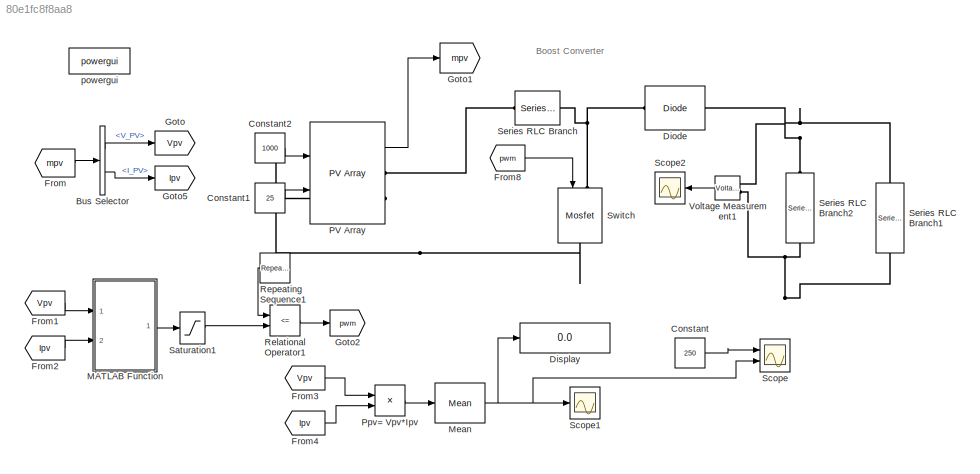
MODEL slx_80e1fc8f8aa8
KIND model
CONFIG AbsTol = auto
CONFIG FixedStep = auto
CONFIG MaxStep = 1e-5
CONFIG MinStep = auto
CONFIG RelTol = 1e-4
CONFIG SampleTimeConstraint = Unconstrained
CONFIG Solver = ode23s
CONFIG SolverMode = Auto
CONFIG SolverName = ode23s
CONFIG StartTime = 0.0
CONFIG StopTime = 1
BLOCK [BusSelector] Bus Selector
  OutputSignals = V_PV,I_PV
  Ports = [1, 2]
BLOCK [Constant] Constant
  Value = 250
BLOCK [Constant] Constant1
  Value = 25
BLOCK [Constant] Constant2
  Value = 1000
BLOCK [Reference] Diode  REF=powerlib/Power
Electronics/Diode
  Cs = 250e-9
  IC = 0
  Lon = 0
  Measurements = off
  Ports = [0, 0, 0, 0, 0, 1, 1]
  Ron = 0.000000001
  Rs = inf
  SourceBlock = powerlib/Power\nElectronics/Diode
  SourceType = Diode
  UseSnubber = 0
  Vf = 0
BLOCK [Display] Display
  Decimation = 1
  Ports = [1]
BLOCK [From] From
  GotoTag = mpv
  TagVisibility = global
BLOCK [From] From1
  GotoTag = Vpv
BLOCK [From] From2
  GotoTag = Ipv
BLOCK [From] From3
  GotoTag = Vpv
BLOCK [From] From4
  GotoTag = Ipv
BLOCK [From] From8
  GotoTag = pwm
  TagVisibility = global
BLOCK [Goto] Goto
  GotoTag = Vpv
BLOCK [Goto] Goto1
  GotoTag = mpv
  TagVisibility = global
BLOCK [Goto] Goto2
  GotoTag = pwm
  TagVisibility = global
BLOCK [Goto] Goto5
  GotoTag = Ipv
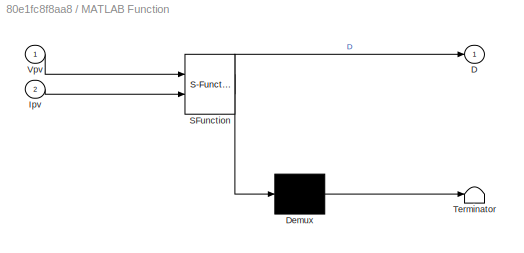
BLOCK [SubSystem] MATLAB Function
  ErrorFcn = Stateflow.Translate.translate
  PermitHierarchicalResolution = ParametersOnly
  Ports = [2, 1]
  RequestExecContextInheritance = off
  SFBlockType = MATLAB Function
  TreatAsAtomicUnit = on
BLOCK [Demux] MATLAB Function/ Demux 
  Outputs = 1
  Ports = [1, 1]
BLOCK [S-Function] MATLAB Function/ SFunction 
  EnableBusSupport = on
  FunctionName = sf_sfun
  PortCounts = [2 2]
  Ports = [2, 2]
  SFunctionDeploymentMode = off
  Tag = Stateflow S-Function invt_mppt_15b 2
BLOCK [Terminator] MATLAB Function/ Terminator 
BLOCK [Outport] MATLAB Function/D
  IconDisplay = Port number
BLOCK [Inport] MATLAB Function/Ipv
  IconDisplay = Port number
  Port = 2
BLOCK [Inport] MATLAB Function/Vpv
  IconDisplay = Port number
BLOCK [Reference] Mean  REF=powerlib_meascontrol/Measurements/Mean
  Freq = 5000
  Ports = [1, 1]
  SourceBlock = powerlib_meascontrol/Measurements/Mean
  SourceType = Mean
  Ts = 0
  Vinit = 0
  treatSBRowAsCol = off
BLOCK [Reference] PV Array  REF=re_lib/Solar/PV Array
  BAL = off
  I0 = 4.1601e-10
  IL = 8.7106
  Im = 8.15
  Isc = 8.66
  ModuleName = 1Soltech 1STH-250-WH
  Ncell = 60
  Npar = 1
  Nser = 1
  PlotType = array @ 1000 W/m2 & specified temperatures
  PlotWhenSelected = on
  Pm = 250.205
  Ports = [2, 1, 0, 0, 0, 0, 2]
  Rs = 0.23724
  Rsh = 224.1886
  S_vec = [ 1000  500  100 ]
  SourceBlock = re_lib/Solar/PV Array
  SourceType = PV array
  Tc = 1e-6
  Temp_C_vec = [ 45 25  ]
  Tfilter = 5e-5
  Vm = 30.7
  Voc = 37.3
  alpha_Isc = 0.007534
  alpha_Isc_pc = 0.086998
  beta_Voc = -0.13764
  beta_Voc_pc = -0.36901
  nI = 1.019
BLOCK [Product] Ppv= Vpv*Ipv
  InputSameDT = off
  OutDataTypeStr = Inherit: Inherit via internal rule
  Ports = [2, 1]
  RndMeth = Floor
  SaturateOnIntegerOverflow = off
BLOCK [RelationalOperator] Relational Operator1
  InputSameDT = off
  Operator = <=
  OutDataTypeStr = boolean
  Ports = [2, 1]
  ZeroCross = off
BLOCK [Reference] Repeating Sequence1  REF=simulink/Sources/Repeating
Sequence
  Ports = [0, 1]
  SourceBlock = simulink/Sources/Repeating\nSequence
  SourceType = Repeating table
  rep_seq_t = [0  1]/5000
  rep_seq_y = [0 1 ]
BLOCK [Saturate] Saturation1
  InputPortMap = u0
  LowerLimit = 0
  Ports = [1, 1]
  UpperLimit = 1
BLOCK [Scope] Scope
  DataFormat = StructureWithTime
  Decimation = 1
  Floating = off
  Grid = on
  LimitDataPoints = off
  MaxDataPoints = 5000
  NumInputPorts = 2
  Ports = [2]
  SampleInput = off
  SampleTime = -1
  SaveName = ScopeData1
  SaveToWorkspace = off
  ShowLegends = off
  TickLabels = OneTimeTick
  TimeRange = auto
  YMax = 281.25~5
  YMin = -31.25~-5
  ZoomMode = on
BLOCK [Scope] Scope1
  DataFormat = StructureWithTime
  Decimation = 1
  Floating = off
  Grid = on
  LimitDataPoints = off
  MaxDataPoints = 5000
  NumInputPorts = 1
  Ports = [1]
  SampleInput = off
  SampleTime = -1
  SaveName = power
  SaveToWorkspace = on
  ShowLegends = off
  TickLabels = OneTimeTick
  TimeRange = auto
  YMax = 287.24667
  YMin = -31.61244
  ZoomMode = on
BLOCK [Scope] Scope2
  DataFormat = StructureWithTime
  Decimation = 1
  Floating = off
  Grid = on
  LimitDataPoints = off
  MaxDataPoints = 5000
  NumInputPorts = 1
  Ports = [1]
  SampleInput = off
  SampleTime = -1
  SaveName = ScopeData6
  SaveToWorkspace = off
  ShowLegends = off
  TickLabels = OneTimeTick
  TimeRange = auto
  YMax = 603.39683
  YMin = 570.25662
  ZoomMode = on
BLOCK [Reference] Series RLC Branch  REF=powerlib/Elements/Series RLC Branch
  BranchType = L
  Capacitance = 1e-6
  Inductance = 5e-3
  InitialCurrent = 0
  InitialVoltage = 0
  LConnTagsString = __new0
  Measurements = None
  Ports = [0, 0, 0, 0, 0, 1, 1]
  RConnTagsString = __new0
  Resistance = 1
  SetiL0 = off
  Setx0 = off
  SourceBlock = powerlib/Elements/Series RLC Branch
  SourceType = Series RLC Branch
BLOCK [Reference] Series RLC Branch1  REF=powerlib/Elements/Series RLC Branch
  BranchType = R
  Capacitance = 9400e-6
  Inductance = 1e-3
  InitialCurrent = 0
  InitialVoltage = 600
  LConnTagsString = __new0
  Measurements = None
  Ports = [0, 0, 0, 0, 0, 1, 1]
  RConnTagsString = __new0
  Resistance = 50
  SetiL0 = off
  Setx0 = on
  SourceBlock = powerlib/Elements/Series RLC Branch
  SourceType = Series RLC Branch
BLOCK [Reference] Series RLC Branch2  REF=powerlib/Elements/Series RLC Branch
  BranchType = C
  Capacitance = 100e-6
  Inductance = 1e-3
  InitialCurrent = 0
  InitialVoltage = 600
  LConnTagsString = __new0
  Measurements = None
  Ports = [0, 0, 0, 0, 0, 1, 1]
  RConnTagsString = __new0
  Resistance = 1
  SetiL0 = off
  Setx0 = off
  SourceBlock = powerlib/Elements/Series RLC Branch
  SourceType = Series RLC Branch
BLOCK [Reference] Switch  REF=powerlib/Power
Electronics/Mosfet
  Cs = inf
  IC = 0
  Lon = 0
  Measurements = off
  Ports = [1, 0, 0, 0, 0, 1, 1]
  Rd = 0.00001
  Ron = 0.00001
  Rs = 1e5
  SourceBlock = powerlib/Power\nElectronics/Mosfet
  SourceType = Mosfet
  Vfd = 0
BLOCK [Reference] Voltage Measurement1  REF=powerlib/Measurements/Voltage Measurement
  OutputType = Complex
  PSBequivalent = 0
  PhasorSimulation = off
  Ports = [0, 1, 0, 0, 0, 2]
  SourceBlock = powerlib/Measurements/Voltage Measurement
  SourceType = Voltage Measurement
BLOCK [Reference] powergui  REF=powerlib/powergui
  CurrentSourceSwitches = off
  DisableRonSwitches = off
  DisableSnubberDevices = off
  DisableVfSwitches = off
  DisplayEquations = off
  DisplayStyle = 1
  EnableUseOfTLC = off
  ErrMax = 1e-4
  ExternalGateDelay = off
  Frange = [0:2:500]
  FreqAxis = on
  FunctionMessages = off
  HookPort = off
  Interpol = off
  Iterations = 50
  MaxFrequency = 1000
  Pbase = 100e6
  Ports = []
  ResistiveCurrentMeasurement = off
  RestoreLinks = warning
  RmsSteady = 1
  SPID = off
  SampleTime = 1e-6
  ShowGrid = off
  SolverType = Backward Euler
  SourceBlock = powerlib/powergui
  SourceType = PSB option menu block
  StartTime = 0.1
  SwTol = 0
  Ts = 0
  UnitsV = kV
  UnitsW = MW
  Xlog = on
  Ylog = off
  ZoomFFT = off
  buscounter = 0
  cycles = 5
  display = off
  echomessages = off
  frequency = 60
  frequencyindice = 0
  frequencyindicesteady = 1
  fundamental = 50
  methode = off
  save = off
  structure = currents
  variable = ZData
  x0status = blocks
ANNOTATION (root): Boost Converter
LINE Bus Selector:1 -> Goto:1
LINE Bus Selector:2 -> Goto5:1
LINE Constant1:1 -> PV Array:2
LINE Constant2:1 -> PV Array:1
LINE Constant:1 -> Scope:1
LINE From1:1 -> MATLAB Function:1
LINE From2:1 -> MATLAB Function:2
LINE From3:1 -> Ppv= Vpv*Ipv:1
LINE From4:1 -> Ppv= Vpv*Ipv:2
LINE From8:1 -> Switch:1
LINE From:1 -> Bus Selector:1
LINE MATLAB Function:1 -> Saturation1:1
NET Mean:1 -> Display:1, Scope1:1, Scope:2
LINE PV Array:1 -> Goto1:1
LINE Ppv= Vpv*Ipv:1 -> Mean:1
LINE Relational Operator1:1 -> Goto2:1
LINE Repeating Sequence1:1 -> Relational Operator1:1
LINE Saturation1:1 -> Relational Operator1:2
LINE Voltage Measurement1:1 -> Scope2:1
PNET net1: Diode:LConn1 -- Series RLC Branch:RConn1 -- Switch:LConn1
PNET net2: Diode:RConn1 -- Series RLC Branch1:LConn1 -- Series RLC Branch2:LConn1 -- Voltage Measurement1:LConn1
PLINE PV Array:RConn1 -- Series RLC Branch:LConn1
PNET net3: PV Array:RConn2 -- Series RLC Branch1:RConn1 -- Series RLC Branch2:RConn1 -- Switch:RConn1 -- Voltage Measurement1:LConn2
note: NET lines group one-source signal fan-out (src -> all destinations, sorted); 1:1 wires keep LINE; PNET lines group multi-terminal physical nets as a canonical sorted terminal list (undirected conserving connections); 2-terminal nets keep the pairwise PLINE form
CHART MATLAB Function states=1 transitions=1
  STATE_LABEL 'eML_blk_kernel()'
  STATE_LABEL 'SCRIPT:\nfunction D = MPPT_IC(Vpv,Ipv)\n\ndel=0.00001;\ndo=0;\ndmin=0;\ndmax=1;\n\npersistent Vold Dold Iold;\n\nif isempty(Vold)\n    Vold=0;\n    Iold=0;\n    Dold=do;\nend\ndv=Vpv- Vold;\ndi=Ipv- Iold;\n\nif dv == 0\n    if di== 0\n        D= Dold;\n    else\n        if di > 0\n            D = Dold - del;\n        else\n            D = Dold+del;\n        end\n    end\nelse\n    if di/dv == -(Ipv/Vpv)\n        D=Dold;\n      ...<+223ch>'
